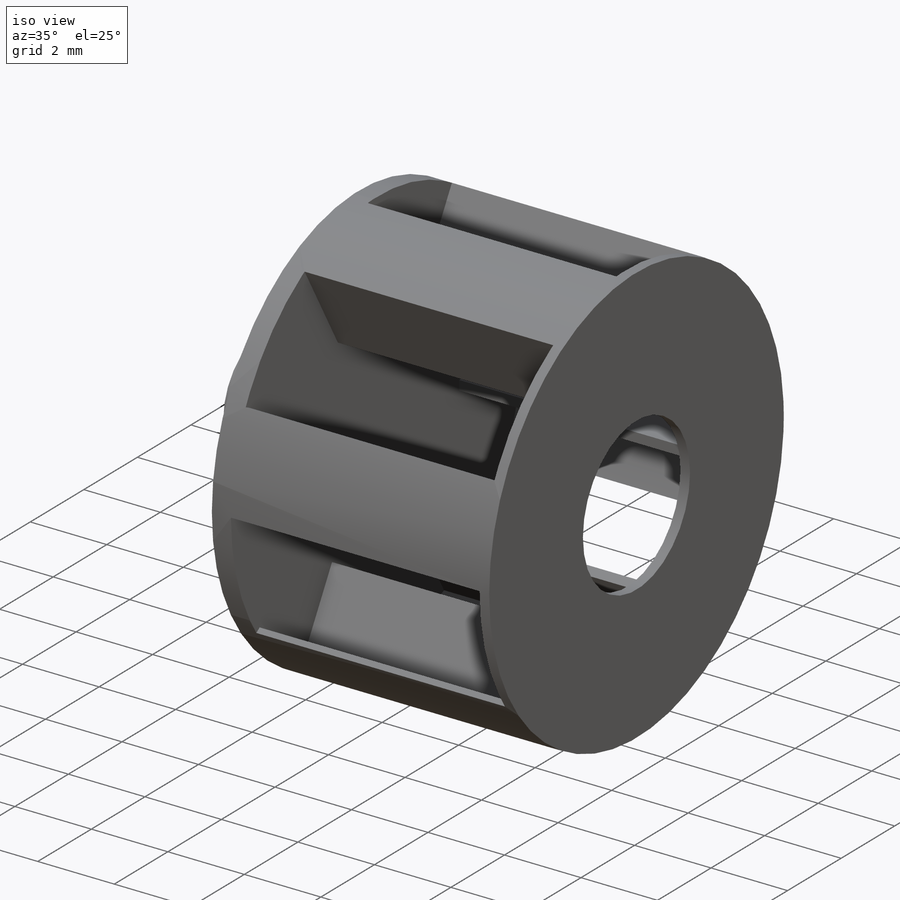
[diagram: iso view]
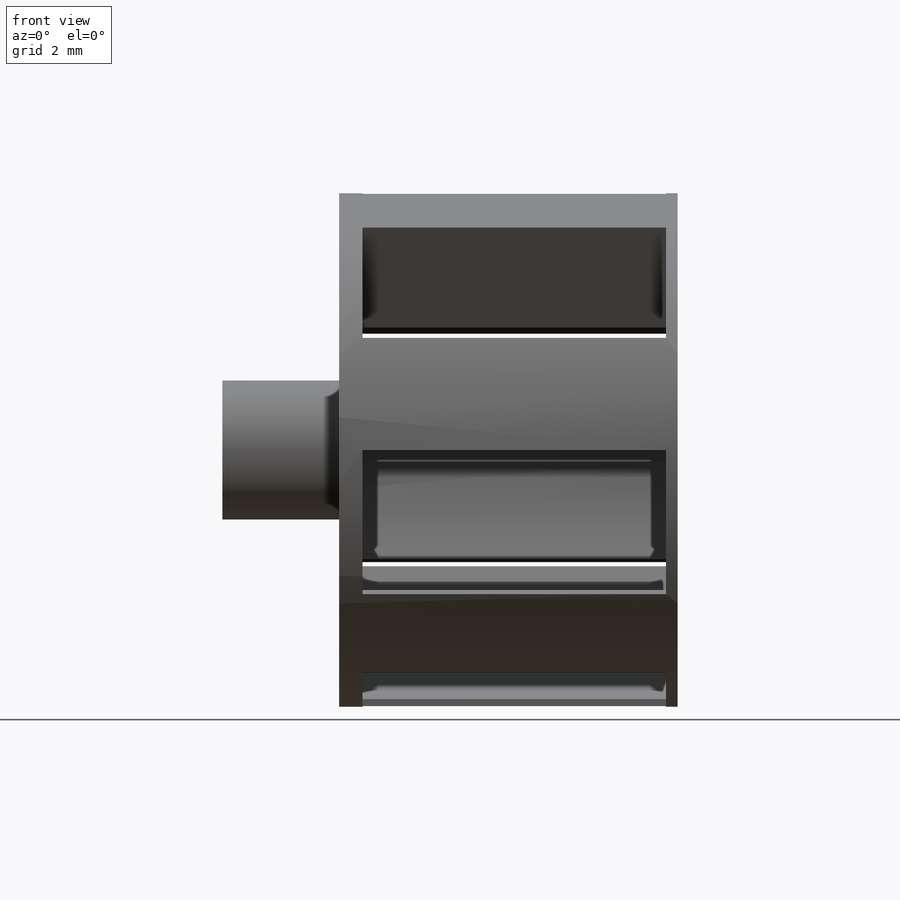
[diagram: front view]
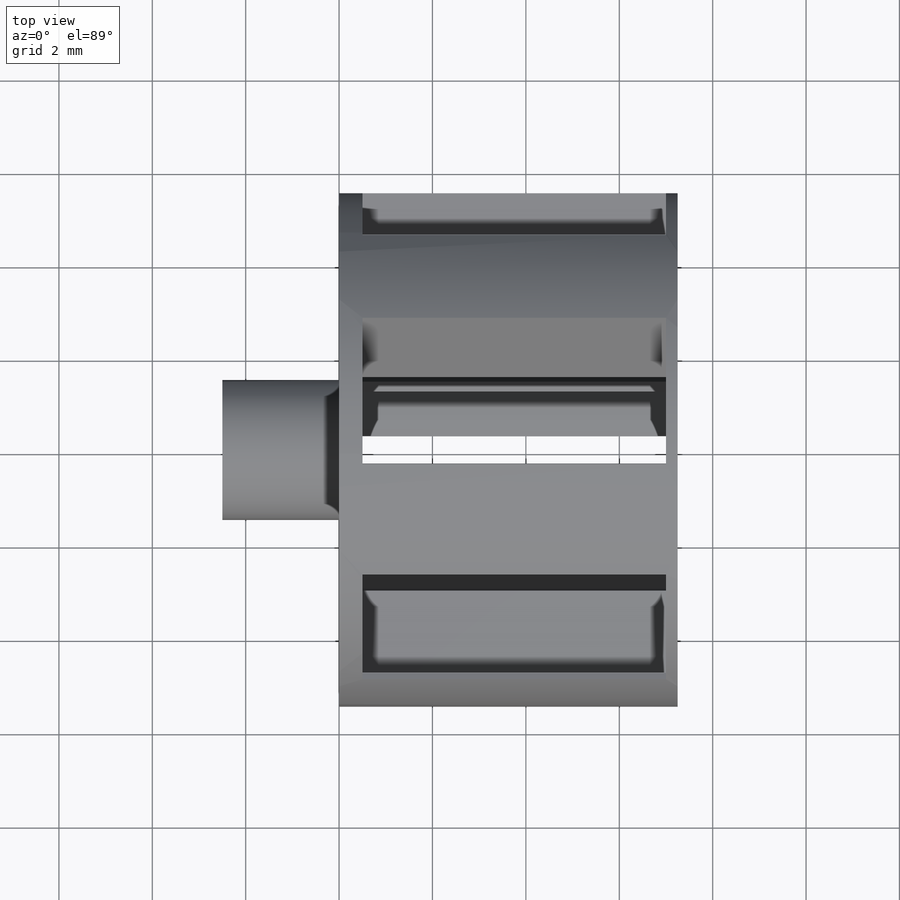
[diagram: top view]
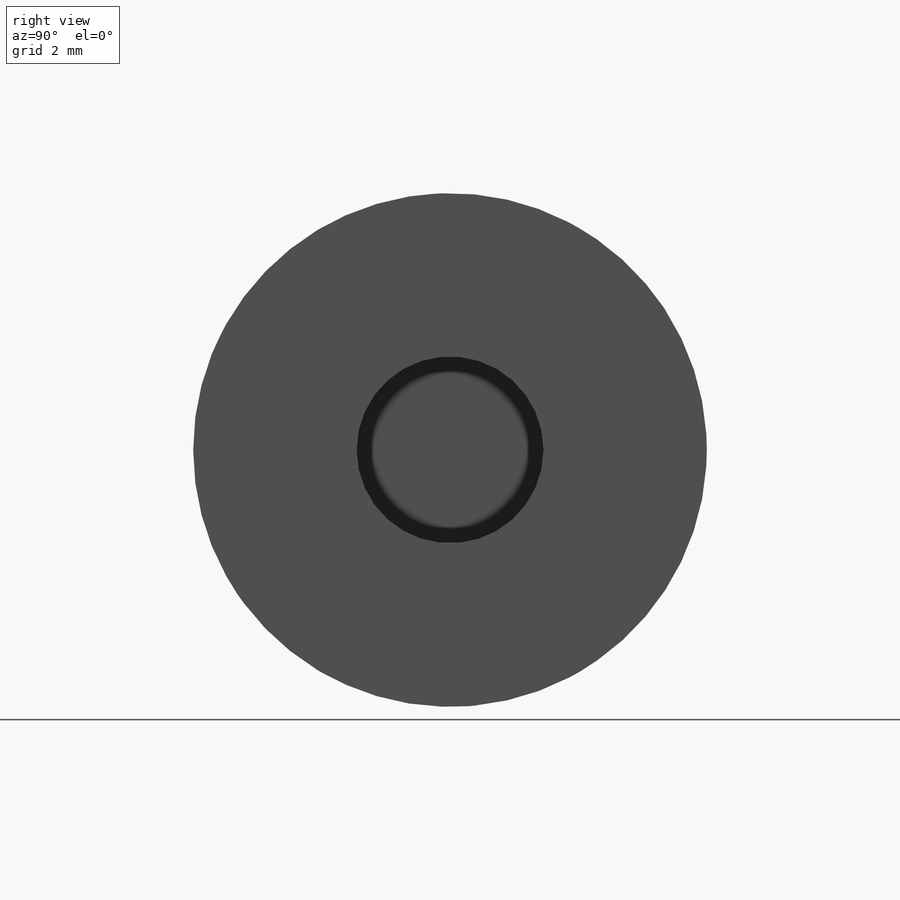
[diagram: right view]
SOLIDWORKS PART (.sldprt)
format: sldprt  version: not decoded by parser v0  size: 202,240 bytes
history: native  units: mm
features: sketch x4, extrude x4, material x1, pattern_circular x1 (+11 scaffold rows collapsed)
feature tree (21):
  scaffold x11  (default folders/planes/origin — collapsed)
  material  "Material <not specified>"
  sketch  "Sketch1"  dims[D1=11.0mm]
  extrude  "Boss-Extrude1"  Depth=0.5mm
  sketch  "Sketch2"  dims[D1=2.48mm D2=2.4mm D3=0.15mm D4=0.25mm]
  extrude  "Boss-Extrude2"  Depth=6.5mm
  pattern_circular  "CirPattern1"  Count=6 Angle=60deg
  sketch  "Sketch3"  dims[D1=4.0mm]
  extrude  "Boss-Extrude3"  Depth=0.25mm
  sketch  "Sketch4"  dims[D1=1.5mm D2=3.0mm]
  extrude  "Boss-Extrude4"  Depth=2.5mm
decode coverage: 9 of 9 modeling features carry decoded parameters
note: suppression state not decoded; provenance and decode notes live in map.json
